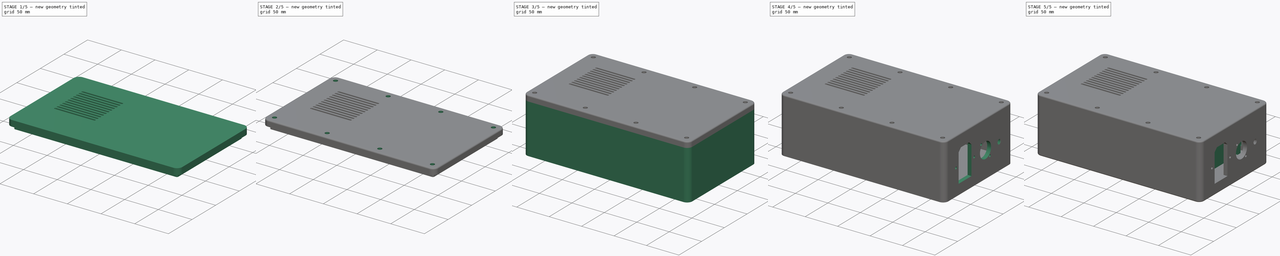
[diagram: build sequence overview — one tinted view per stage of 5, left to right]
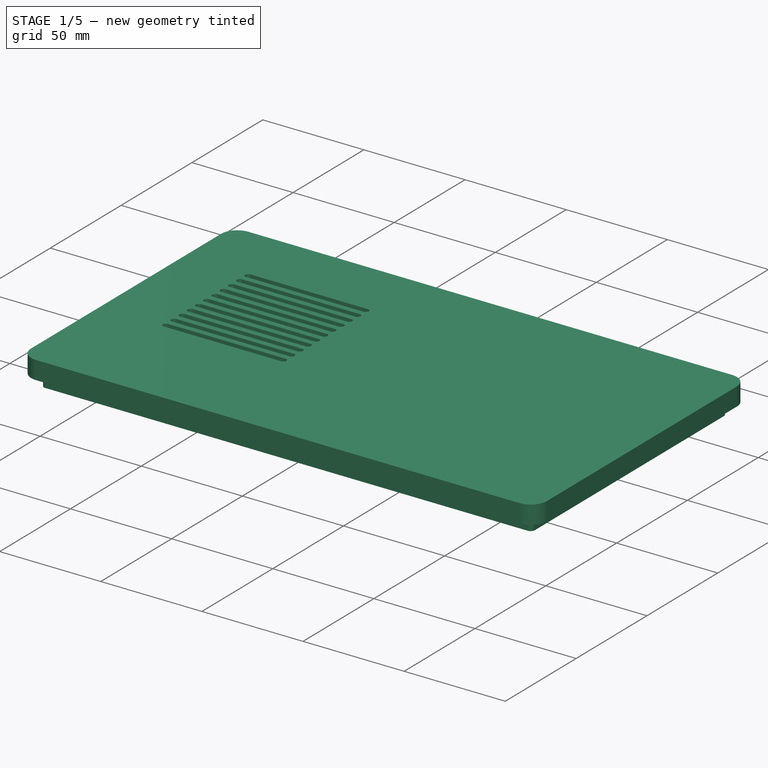
[diagram: stage 1 of 5 — iso view after this stage's code; geometry added in this stage tinted green]
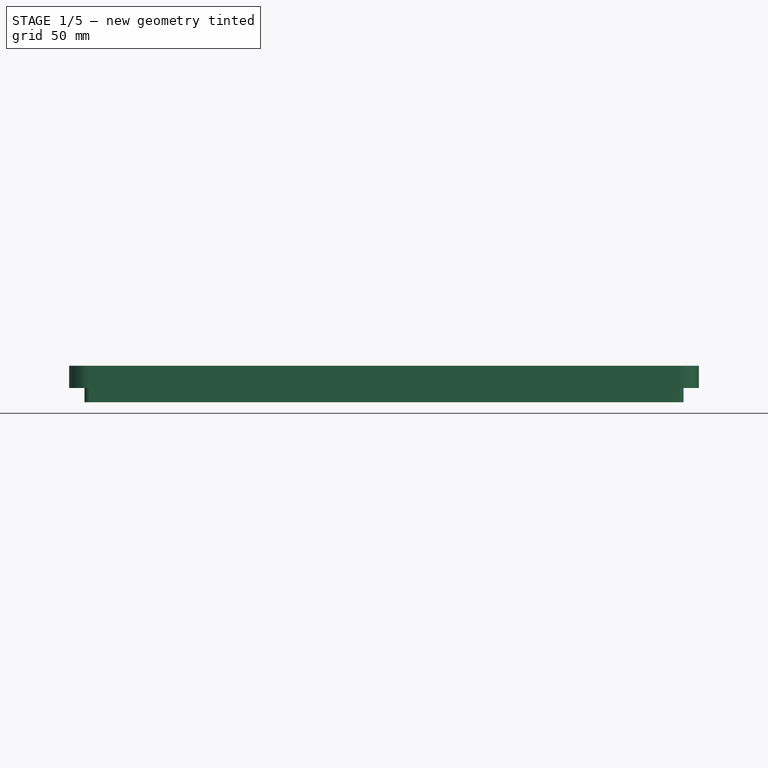
[diagram: stage 1 of 5 — front view after this stage's code; geometry added in this stage tinted green]
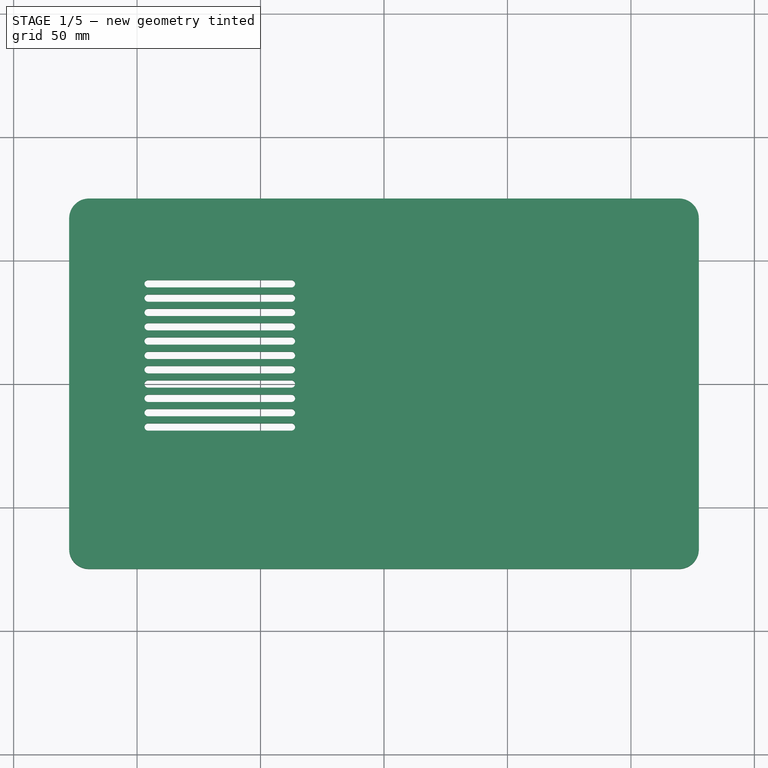
[diagram: stage 1 of 5 — top view after this stage's code; geometry added in this stage tinted green]
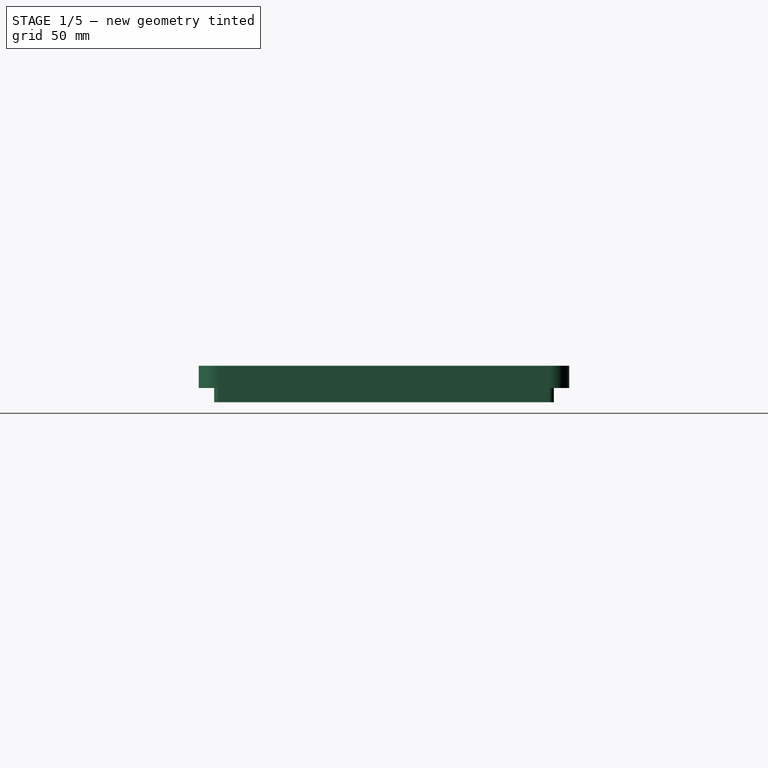
[diagram: stage 1 of 5 — right view after this stage's code; geometry added in this stage tinted green]
FCSTD DOCUMENT  (FreeCAD 0.21R33668 +26 (Git))
Label: PSU_Box_V2
License: All rights reserved
LicenseURL: http://en.wikipedia.org/wiki/All_rights_reserved
objects: Sketcher::SketchObject×18, PartDesign::Pad×8, PartDesign::Mirrored×8, PartDesign::Pocket×6, PartDesign::MultiTransform×4, PartDesign::Hole×4, PartDesign::Body×3, PartDesign::LinearPattern×2, PartDesign::Fillet×2, Spreadsheet::Sheet×1, App::Part×1
note: 75 computed .brp shape members not serialized (recipe doc carries the construction recipe); baked Part::Feature solids carry a one-line shape summary decoded from their .brp

FEATURE [Sketcher::SketchObject] Sketch009
  AttachmentOffset = pos=(0,0,76) rot=(0,0,1;0rad)
  FullyConstrained = true
  MapMode = 5
  Placement = pos=(0,0,76) rot=(0,0,1;0rad)
  Support = -> [XY_Plane003]
  expr: .AttachmentOffset.Base.z = Spreadsheet.box_height
  expr: Constraints[16] = Spreadsheet.outside_radius
  expr: Constraints[17] = Spreadsheet.box_width
  expr: Constraints[18] = Spreadsheet.box_length
  sketch-geometry (9):
    g0: LineSegment StartX=127.5 StartY=-67 StartZ=0 EndX=127.5 EndY=67 EndZ=0
    g1: LineSegment StartX=119.5 StartY=75 StartZ=0 EndX=-119.5 EndY=75 EndZ=0
    g2: LineSegment StartX=-127.5 StartY=67 StartZ=0 EndX=-127.5 EndY=-67 EndZ=0
    g3: LineSegment StartX=-119.5 StartY=-75 StartZ=0 EndX=119.5 EndY=-75 EndZ=0
    g4: GeomPoint X=0 Y=0 Z=0
    g5: ArcOfCircle CenterX=-119.5 CenterY=67 CenterZ=0 NormalX=0 NormalY=0 NormalZ=1 AngleXU=0 Radius=8 StartAngle=1.5708 EndAngle=3.14159
    g6: ArcOfCircle CenterX=119.5 CenterY=67 CenterZ=0 NormalX=0 NormalY=0 NormalZ=1 AngleXU=0 Radius=8 StartAngle=1e-16 EndAngle=1.5708
    g7: ArcOfCircle CenterX=119.5 CenterY=-67 CenterZ=0 NormalX=0 NormalY=0 NormalZ=1 AngleXU=0 Radius=8 StartAngle=4.71239 EndAngle=6.28319
    g8: ArcOfCircle CenterX=-119.5 CenterY=-67 CenterZ=0 NormalX=0 NormalY=0 NormalZ=1 AngleXU=0 Radius=8 StartAngle=3.14159 EndAngle=4.71239
  constraints (20):
    c: Horizontal(g1)
    c: Horizontal(g3)
    c: Vertical(g0)
    c: Vertical(g2)
    c: Coincident(g4,g-1)
    c: Tangent(g2,g5) = -1.5708
    c: Tangent(g1,g5) = -1.5708
    c: Tangent(g1,g6) = -1.5708
    c: Tangent(g0,g6) = -1.5708
    c: Tangent(g3,g7) = -1.5708
    c: Tangent(g0,g7) = -1.5708
    c: Tangent(g3,g8) = -1.5708
    c: Tangent(g2,g8) = -1.5708
    c: Equal(g5,g6)
    c: Equal(g6,g7)
    c: Equal(g7,g8)
    c: Radius(g5) = 8
    c: DistanceY(g3,g1) = 150
    c: DistanceX(g2,g0) = 255
    c: Symmetric(g5,g7,g4)
FEATURE [PartDesign::Pad] Pad006
  Direction = (0,0,1)
  Length = 9
  Length2 = 10
  Profile = -> Sketch009
  ReferenceAxis = -> Sketch009 [N_Axis]
  Type = 0
  expr: Length = Spreadsheet.base_thickness
FEATURE [Sketcher::SketchObject] Sketch010
  AttachmentOffset = pos=(0,0,76) rot=(0,0,1;0rad)
  FullyConstrained = true
  MapMode = 5
  Placement = pos=(0,0,76) rot=(0,0,1;0rad)
  Support = -> [XY_Plane003]
  expr: .AttachmentOffset.Base.z = Spreadsheet.box_height
  expr: Constraints[17] = Spreadsheet.box_inside_length - Spreadsheet.clearance_sides * 2
  expr: Constraints[18] = Spreadsheet.box_inside_width - Spreadsheet.clearance_sides * 2
  expr: Constraints[19] = Spreadsheet.inside_radius
  sketch-geometry (9):
    g0: LineSegment StartX=-121.3 StartY=-66.8 StartZ=0 EndX=-121.3 EndY=66.8 EndZ=0
    g1: LineSegment StartX=-119.3 StartY=68.8 StartZ=0 EndX=119.3 EndY=68.8 EndZ=0
    g2: LineSegment StartX=121.3 StartY=66.8 StartZ=0 EndX=121.3 EndY=-66.8 EndZ=0
    g3: LineSegment StartX=119.3 StartY=-68.8 StartZ=0 EndX=-119.3 EndY=-68.8 EndZ=0
    g4: GeomPoint X=0 Y=0 Z=0
    g5: ArcOfCircle CenterX=-119.3 CenterY=66.8 CenterZ=0 NormalX=0 NormalY=0 NormalZ=1 AngleXU=0 Radius=2 StartAngle=1.5708 EndAngle=3.14159
    g6: ArcOfCircle CenterX=119.3 CenterY=66.8 CenterZ=0 NormalX=0 NormalY=0 NormalZ=1 AngleXU=0 Radius=2 StartAngle=-6.8692e-12 EndAngle=1.5708
    g7: ArcOfCircle CenterX=119.3 CenterY=-66.8 CenterZ=0 NormalX=0 NormalY=0 NormalZ=1 AngleXU=0 Radius=2 StartAngle=4.71239 EndAngle=6.28319
    g8: ArcOfCircle CenterX=-119.3 CenterY=-66.8 CenterZ=0 NormalX=0 NormalY=0 NormalZ=1 AngleXU=0 Radius=2 StartAngle=3.14159 EndAngle=4.71239
  constraints (20):
    c: Horizontal(g1)
    c: Horizontal(g3)
    c: Vertical(g0)
    c: Vertical(g2)
    c: Coincident(g4,g-1)
    c: Tangent(g0,g5) = 1.5708
    c: Tangent(g1,g5) = 1.5708
    c: Tangent(g1,g6) = 1.5708
    c: Tangent(g2,g6) = 1.5708
    c: Tangent(g2,g7) = 1.5708
    c: Tangent(g3,g7) = 1.5708
    c: Tangent(g3,g8) = 1.5708
    c: Tangent(g0,g8) = 1.5708
    c: Equal(g5,g6)
    c: Equal(g6,g7)
    c: Equal(g7,g8)
    c: Symmetric(g5,g7,g4)
    c: DistanceX(g0,g2) = 242.6
    c: DistanceY(g3,g1) = 137.6
    c: Radius(g5) = 2
FEATURE [PartDesign::Pad] Pad007
  BaseFeature = -> Pad006
  Direction = (0,0,1)
  Length = 5.8
  Length2 = 10
  Profile = -> Sketch010
  ReferenceAxis = -> Sketch010 [N_Axis]
  Reversed = true
  Type = 0
  expr: Length = Spreadsheet.box_height - (Spreadsheet.base_thickness + Spreadsheet.lug_height + Spreadsheet.clearance_sides)
FEATURE [Sketcher::SketchObject] Sketch011
  AttachmentOffset = pos=(0,0,85.5) rot=(0,0,1;0rad)
  FullyConstrained = true
  MapMode = 5
  Placement = pos=(0,0,85.5) rot=(0,0,1;0rad)
  Support = -> [XY_Plane003]
  expr: .AttachmentOffset.Base.z = Spreadsheet.box_height + Spreadsheet.lid_height
  expr: Constraints[0] = Spreadsheet.hole_centre_length
  expr: Constraints[1] = Spreadsheet.hole_centre_width
  expr: Constraints[2] = Spreadsheet.clearance_hole
  sketch-geometry (1):
    g0: Circle CenterX=-117.1 CenterY=64.6 CenterZ=0 NormalX=0 NormalY=0 NormalZ=1 AngleXU=0 Radius=1.65
  constraints (3):
    c: DistanceX(g0,g-1) = 117.1
    c: DistanceY(g-1,g0) = 64.6
    c: Diameter(g0) = 3.3
FEATURE [Sketcher::SketchObject] Sketch012
  AttachmentOffset = pos=(0,0,85.5) rot=(0,0,1;0rad)
  FullyConstrained = true
  MapMode = 5
  Placement = pos=(0,0,85.5) rot=(0,0,1;0rad)
  Support = -> [XY_Plane003]
  expr: .AttachmentOffset.Base.z = Spreadsheet.box_height + Spreadsheet.lid_height
  expr: Constraints[0] = Spreadsheet.hole_centre_width
  expr: Constraints[1] = Spreadsheet.hole_centre_length / 3
  expr: Constraints[2] = Spreadsheet.clearance_hole
  sketch-geometry (1):
    g0: Circle CenterX=-39.0333 CenterY=64.6 CenterZ=0 NormalX=0 NormalY=0 NormalZ=1 AngleXU=0 Radius=1.65
  constraints (3):
    c: DistanceY(g-1,g0) = 64.6
    c: DistanceX(g0,g-1) = 39.0333
    c: Diameter(g0) = 3.3
FEATURE [Sketcher::SketchObject] Sketch013
  AttachmentOffset = pos=(0,0,76) rot=(0,0,1;0rad)
  FullyConstrained = true
  MapMode = 5
  Placement = pos=(0,0,76) rot=(0,0,1;0rad)
  Support = -> [XY_Plane003]
  expr: .AttachmentOffset.Base.z = Spreadsheet.box_height
  expr: Constraints[17] = Spreadsheet.box_length * 0.89
  expr: Constraints[18] = Spreadsheet.box_width * 0.8
  sketch-geometry (9):
    g0: LineSegment StartX=113.475 StartY=-53 StartZ=0 EndX=113.475 EndY=53 EndZ=0
    g1: LineSegment StartX=106.475 StartY=60 StartZ=0 EndX=-106.475 EndY=60 EndZ=0
    g2: LineSegment StartX=-113.475 StartY=53 StartZ=0 EndX=-113.475 EndY=-53 EndZ=0
    g3: LineSegment StartX=-106.475 StartY=-60 StartZ=0 EndX=106.475 EndY=-60 EndZ=0
    g4: GeomPoint X=0 Y=0 Z=0
    g5: ArcOfCircle CenterX=-106.475 CenterY=53 CenterZ=0 NormalX=0 NormalY=0 NormalZ=1 AngleXU=0 Radius=7 StartAngle=1.5708 EndAngle=3.14159
    g6: ArcOfCircle CenterX=106.475 CenterY=53 CenterZ=0 NormalX=0 NormalY=0 NormalZ=1 AngleXU=0 Radius=7 StartAngle=0 EndAngle=1.5708
    g7: ArcOfCircle CenterX=106.475 CenterY=-53 CenterZ=0 NormalX=0 NormalY=0 NormalZ=1 AngleXU=0 Radius=7 StartAngle=4.71239 EndAngle=6.28319
    g8: ArcOfCircle CenterX=-106.475 CenterY=-53 CenterZ=0 NormalX=0 NormalY=0 NormalZ=1 AngleXU=0 Radius=7 StartAngle=3.14159 EndAngle=4.71239
  constraints (20):
    c: Horizontal(g1)
    c: Horizontal(g3)
    c: Vertical(g0)
    c: Vertical(g2)
    c: Coincident(g4,g-1)
    c: Tangent(g2,g5) = -1.5708
    c: Tangent(g1,g5) = -1.5708
    c: Tangent(g1,g6) = -1.5708
    c: Tangent(g0,g6) = -1.5708
    c: Tangent(g0,g7) = -1.5708
    c: Tangent(g3,g7) = -1.5708
    c: Tangent(g3,g8) = -1.5708
    c: Tangent(g2,g8) = -1.5708
    c: Equal(g5,g6)
    c: Equal(g6,g7)
    c: Equal(g7,g8)
    c: Symmetric(g5,g7,g4)
    c: DistanceX(g2,g0) = 226.95
    c: DistanceY(g3,g1) = 120
    c: Radius(g5) = 7
FEATURE [PartDesign::Pocket] Pocket004
  BaseFeature = -> Pad007
  Direction = (0,0,-1)
  Length = 5
  Length2 = 5
  Profile = -> Sketch013
  ReferenceAxis = -> Sketch013 [N_Axis]
  Type = 2
FEATURE [PartDesign::Body] Body  label="Box"
  Group = -> [Sketch,Pad,Sketch001,Pocket,Sketch002,Pad001,MultiTransform,Mirrored,Mirrored001,Sketch004,Pad002,MultiTransform001,Mirrored002,Mirrored003,Sketch014,Pocket005,Sketch015,Hole,Sketch016,Pad008,Sketch017,Hole001,Sketch018,Pocket006,LinearPattern,Fillet]
  Origin = -> Origin001
  Tip = -> Fillet
FEATURE [Sketcher::SketchObject] Sketch019
  AttachmentOffset = pos=(0,0,85.5) rot=(0,0,1;0rad)
  FullyConstrained = true
  MapMode = 5
  Placement = pos=(0,0,85.5) rot=(0,0,1;0rad)
  Support = -> [XY_Plane003]
  expr: .AttachmentOffset.Base.z = Spreadsheet.box_height + Spreadsheet.lid_height
  sketch-geometry (9):
    g0: LineSegment StartX=-95.5 StartY=-17.5 StartZ=0 EndX=-95.5 EndY=40.5 EndZ=0
    g1: LineSegment StartX=-95.5 StartY=40.5 StartZ=0 EndX=-37.5 EndY=40.5 EndZ=0
    g2: LineSegment StartX=-37.5 StartY=40.5 StartZ=0 EndX=-37.5 EndY=-17.5 EndZ=0
    g3: LineSegment StartX=-37.5 StartY=-17.5 StartZ=0 EndX=-95.5 EndY=-17.5 EndZ=0
    g4: GeomPoint X=-66.5 Y=11.5 Z=0
    g5: ArcOfCircle CenterX=-95.5 CenterY=40.5 CenterZ=0 NormalX=0 NormalY=0 NormalZ=1 AngleXU=0 Radius=1.5 StartAngle=1.5708 EndAngle=4.71239
    g6: ArcOfCircle CenterX=-37.5 CenterY=40.5 CenterZ=0 NormalX=0 NormalY=0 NormalZ=1 AngleXU=0 Radius=1.5 StartAngle=4.71239 EndAngle=7.85398
    g7: LineSegment StartX=-95.5 StartY=39 StartZ=0 EndX=-37.5 EndY=39 EndZ=0
    g8: LineSegment StartX=-37.5 StartY=42 StartZ=0 EndX=-95.5 EndY=42 EndZ=0
  constraints (20):
    c: Coincident(g0,g1)
    c: Coincident(g1,g2)
    c: Coincident(g2,g3)
    c: Coincident(g3,g0)
    c: Horizontal(g1)
    c: Vertical(g0)
    c: Symmetric(g1,g0,g4)
    c: Symmetric(g0,g2,g4)
    c: DistanceY(g4) = 11.5
    c: DistanceX(g4) = -66.5
    c: Distance(g1) = 58
    c: Distance(g0) = 58
    c: Tangent(g5,g7) = -1.5708
    c: Tangent(g7,g6) = -1.5708
    c: Tangent(g6,g8) = -1.5708
    c: Tangent(g8,g5) = -1.5708
    c: Equal(g5,g6)
    c: Coincident(g5,g0)
    c: Coincident(g6,g1)
    c: Diameter(g6) = 3
FEATURE [PartDesign::Pocket] Pocket007
  BaseFeature = -> Pocket004
  Direction = (0,0,-1)
  Length = 5
  Length2 = 5
  Profile = -> Sketch019
  ReferenceAxis = -> Sketch019 [N_Axis]
  Type = 1
FEATURE [PartDesign::LinearPattern] LinearPattern001
  BaseFeature = -> Pocket007
  Direction = -> Y_Axis003
  Length = 58
  Occurrences = 11
  Originals = -> [Pocket007]
  Reversed = true
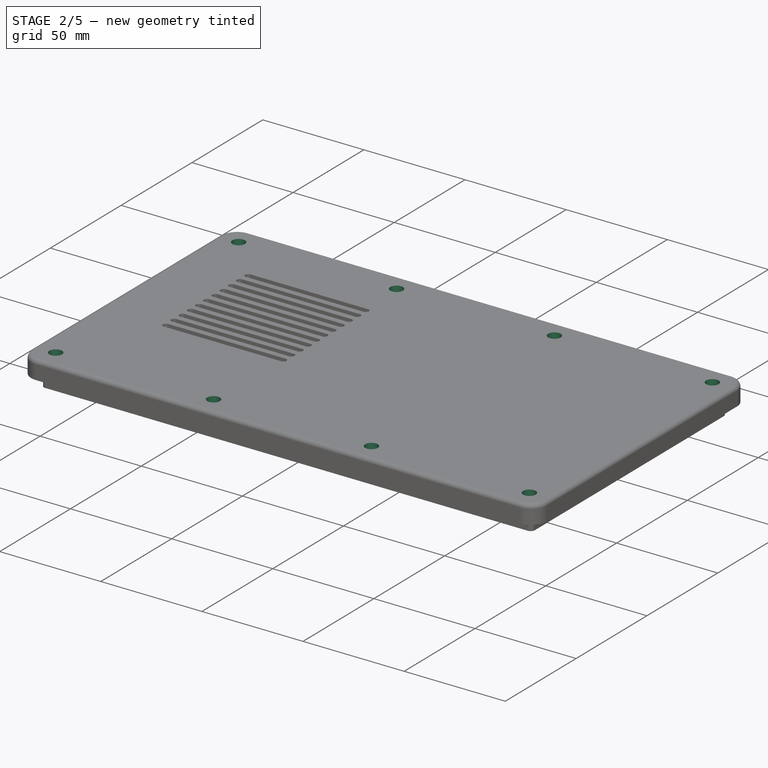
[diagram: stage 2 of 5 — iso view after this stage's code; geometry added in this stage tinted green]
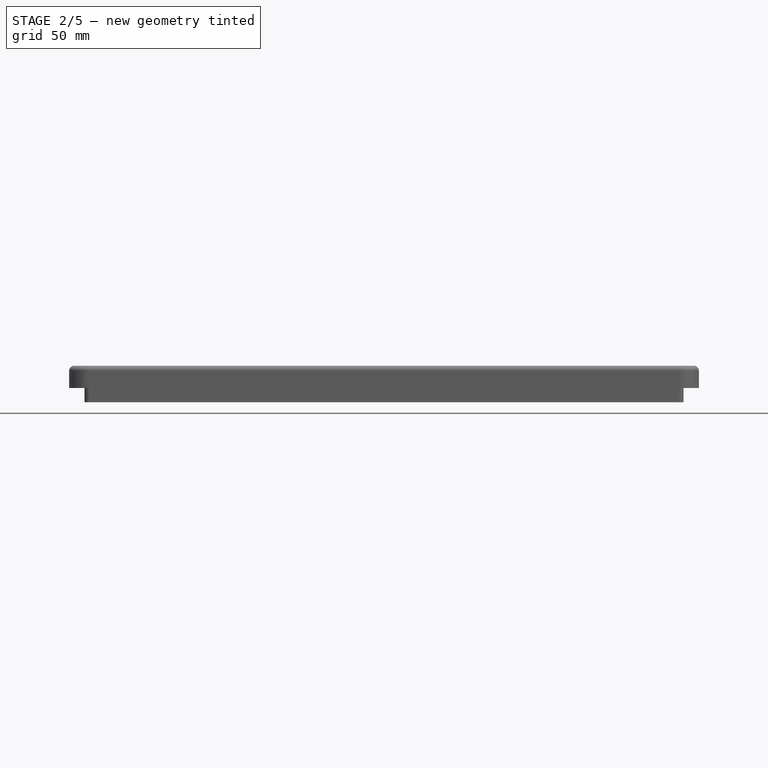
[diagram: stage 2 of 5 — front view after this stage's code; geometry added in this stage tinted green]
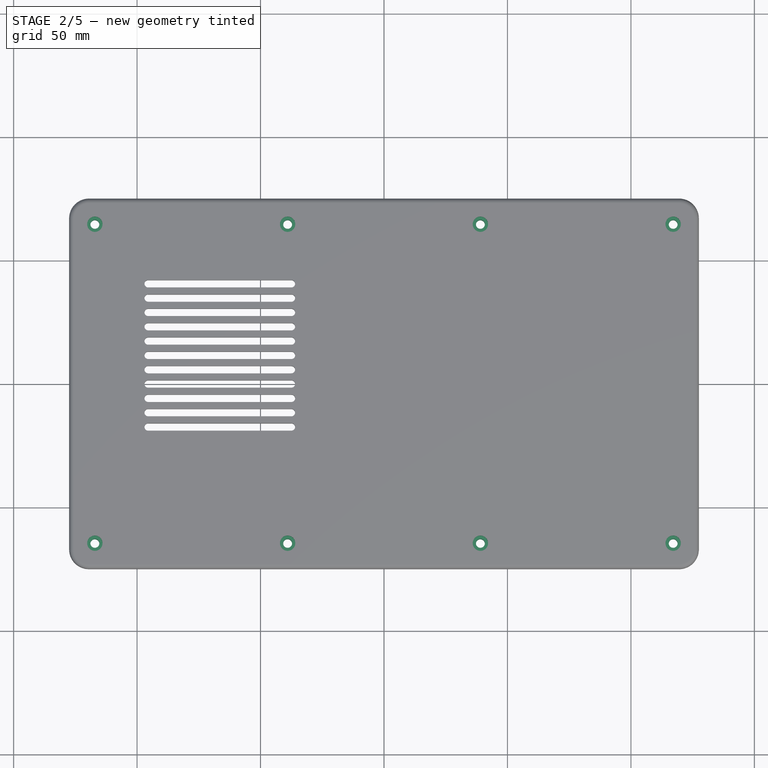
[diagram: stage 2 of 5 — top view after this stage's code; geometry added in this stage tinted green]
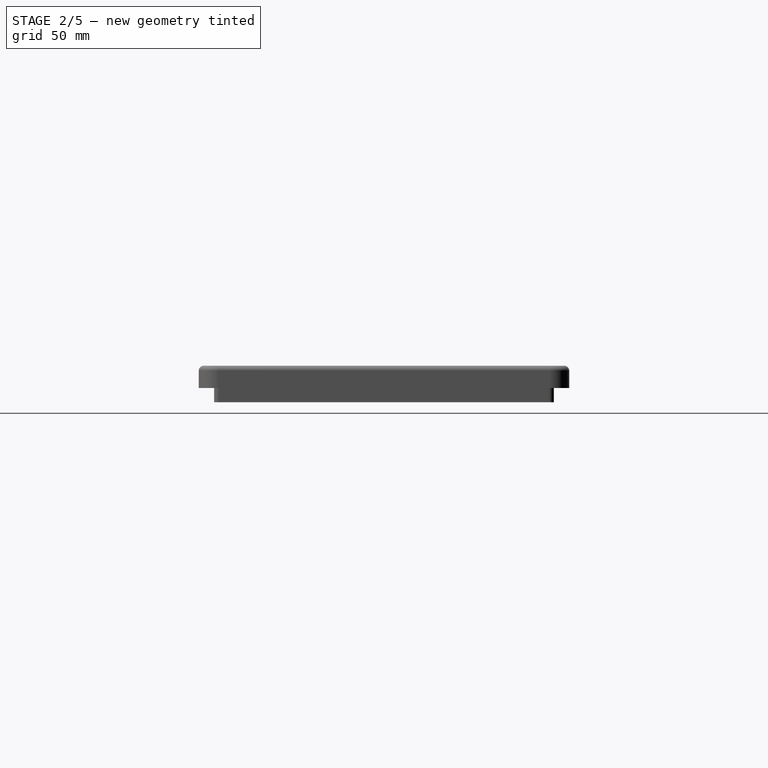
[diagram: stage 2 of 5 — right view after this stage's code; geometry added in this stage tinted green]
FEATURE [PartDesign::Hole] Hole002
  BaseFeature = -> LinearPattern001
  CustomThreadClearance = 0
  Depth = 598.408
  DepthType = 1
  Diameter = 3.6
  DrillForDepth = false
  DrillPoint = 1
  DrillPointAngle = 118
  HoleCutCountersinkAngle = 90
  HoleCutCustomValues = false
  HoleCutDepth = 4.5
  HoleCutDiameter = 6.2
  HoleCutType = 1
  ModelThread = false
  Profile = -> Sketch011
  Tapered = false
  TaperedAngle = 90
  ThreadClass = 0
  ThreadDepth = 598.408
  ThreadDepthType = 0
  ThreadDirection = 0
  ThreadFit = 2
  ThreadSize = 9
  ThreadType = 1
  Threaded = false
  UseCustomThreadClearance = false
FEATURE [PartDesign::Hole] Hole003
  BaseFeature = -> Hole002
  CustomThreadClearance = 0
  Depth = 598.408
  DepthType = 1
  Diameter = 3.6
  DrillForDepth = false
  DrillPoint = 1
  DrillPointAngle = 118
  HoleCutCountersinkAngle = 90
  HoleCutCustomValues = false
  HoleCutDepth = 4.5
  HoleCutDiameter = 6.2
  HoleCutType = 1
  ModelThread = false
  Profile = -> Sketch012
  Tapered = false
  TaperedAngle = 90
  ThreadClass = 0
  ThreadDepth = 598.408
  ThreadDepthType = 0
  ThreadDirection = 0
  ThreadFit = 2
  ThreadSize = 9
  ThreadType = 1
  Threaded = false
  UseCustomThreadClearance = false
FEATURE [PartDesign::Mirrored] Mirrored004
  MirrorPlane = -> Sketch011 [V_Axis]
FEATURE [PartDesign::Mirrored] Mirrored005
  MirrorPlane = -> Sketch011 [H_Axis]
FEATURE [PartDesign::MultiTransform] MultiTransform002
  BaseFeature = -> Hole003
  Originals = -> [Hole002]
  Transformations = -> [Mirrored004,Mirrored005]
FEATURE [PartDesign::Mirrored] Mirrored006
  MirrorPlane = -> Sketch012 [V_Axis]
FEATURE [PartDesign::Mirrored] Mirrored007
  MirrorPlane = -> Sketch012 [H_Axis]
FEATURE [PartDesign::MultiTransform] MultiTransform003
  BaseFeature = -> MultiTransform002
  Originals = -> [Hole003]
  Transformations = -> [Mirrored006,Mirrored007]
FEATURE [PartDesign::Fillet] Fillet001
  Base = -> MultiTransform003 [Edge25,Edge27,Edge28,Edge26,Edge24,Edge7,Edge4,Edge10]
  BaseFeature = -> MultiTransform003
  Radius = 2
  SupportTransform = false
  UseAllEdges = false
FEATURE [PartDesign::Body] Body002  label="Lid"
  Group = -> [Sketch009,Pad006,Sketch010,Pad007,Sketch011,Sketch012,Sketch013,Pocket004,Sketch019,Pocket007,LinearPattern001,Hole002,Hole003,MultiTransform002,Mirrored004,Mirrored005,MultiTransform003,Mirrored006,Mirrored007,Fillet001]
  Origin = -> Origin003
  Tip = -> Fillet001
FEATURE [App::Part] Part
  Group = -> [Body,Body001,Body002]
  Origin = -> Origin
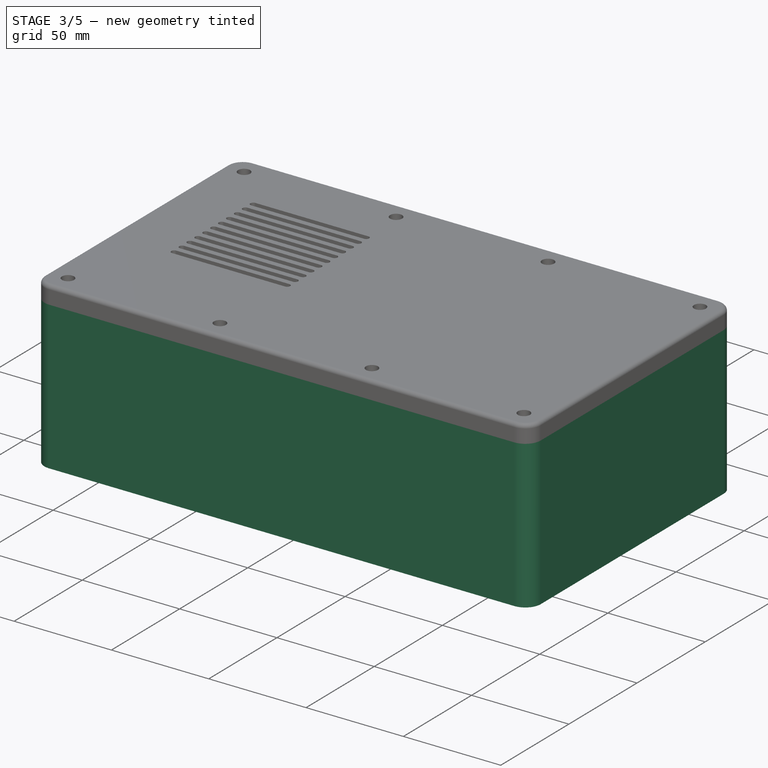
[diagram: stage 3 of 5 — iso view after this stage's code; geometry added in this stage tinted green]
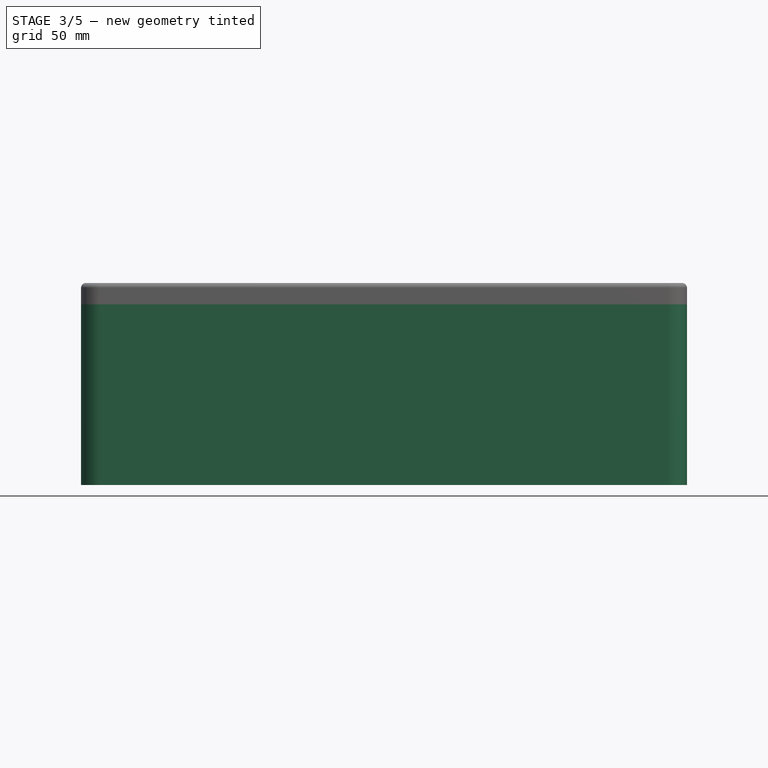
[diagram: stage 3 of 5 — front view after this stage's code; geometry added in this stage tinted green]
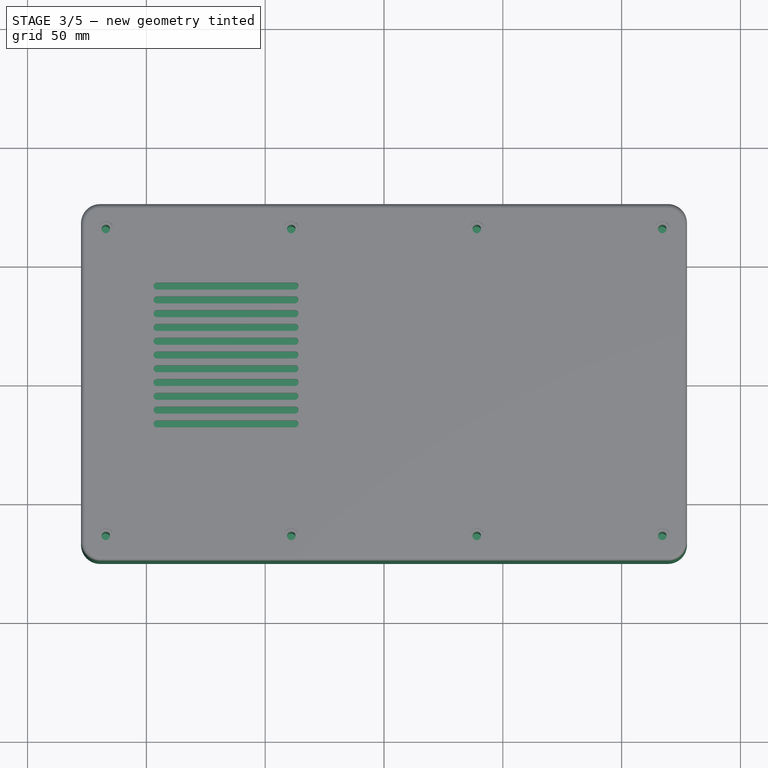
[diagram: stage 3 of 5 — top view after this stage's code; geometry added in this stage tinted green]
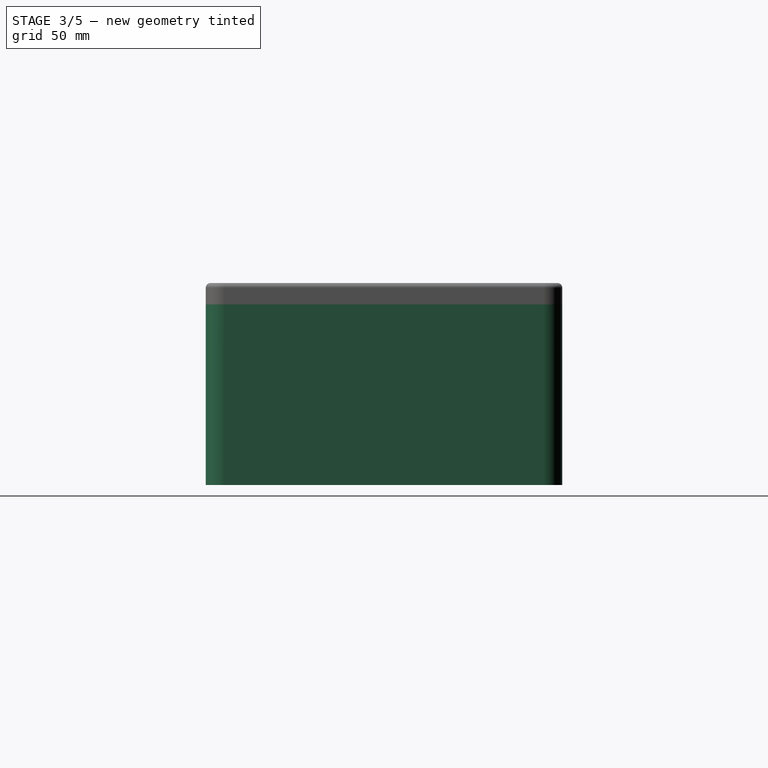
[diagram: stage 3 of 5 — right view after this stage's code; geometry added in this stage tinted green]
FEATURE [Sketcher::SketchObject] Sketch
  FullyConstrained = true
  MapMode = 5
  Support = -> [XY_Plane001]
  expr: Constraints[16] = Spreadsheet.box_length
  expr: Constraints[17] = Spreadsheet.box_width
  expr: Constraints[19] = Spreadsheet.outside_radius
  sketch-geometry (9):
    g0: LineSegment StartX=127.5 StartY=-67 StartZ=0 EndX=127.5 EndY=67 EndZ=0
    g1: LineSegment StartX=119.5 StartY=75 StartZ=0 EndX=-119.5 EndY=75 EndZ=0
    g2: LineSegment StartX=-127.5 StartY=67 StartZ=0 EndX=-127.5 EndY=-67 EndZ=0
    g3: LineSegment StartX=-119.5 StartY=-75 StartZ=0 EndX=119.5 EndY=-75 EndZ=0
    g4: GeomPoint X=0 Y=0 Z=0
    g5: ArcOfCircle CenterX=-119.5 CenterY=67 CenterZ=0 NormalX=0 NormalY=0 NormalZ=1 AngleXU=0 Radius=8 StartAngle=1.5708 EndAngle=3.14159
    g6: ArcOfCircle CenterX=119.5 CenterY=67 CenterZ=0 NormalX=0 NormalY=0 NormalZ=1 AngleXU=0 Radius=8 StartAngle=5e-16 EndAngle=1.5708
    g7: ArcOfCircle CenterX=119.5 CenterY=-67 CenterZ=0 NormalX=0 NormalY=0 NormalZ=1 AngleXU=0 Radius=8 StartAngle=4.71239 EndAngle=6.28319
    g8: ArcOfCircle CenterX=-119.5 CenterY=-67 CenterZ=0 NormalX=0 NormalY=0 NormalZ=1 AngleXU=0 Radius=8 StartAngle=3.14159 EndAngle=4.71239
  constraints (20):
    c: Horizontal(g1)
    c: Horizontal(g3)
    c: Vertical(g0)
    c: Vertical(g2)
    c: Coincident(g4,g-1)
    c: Tangent(g2,g5) = -1.5708
    c: Tangent(g1,g5) = -1.5708
    c: Tangent(g1,g6) = -1.5708
    c: Tangent(g0,g6) = -1.5708
    c: Tangent(g0,g7) = -1.5708
    c: Tangent(g3,g7) = -1.5708
    c: Tangent(g3,g8) = -1.5708
    c: Tangent(g2,g8) = -1.5708
    c: Equal(g5,g6)
    c: Equal(g6,g7)
    c: Equal(g7,g8)
    c: DistanceX(g2,g0) = 255
    c: DistanceY(g3,g1) = 150
    c: Symmetric(g5,g7,g4)
    c: Radius(g5) = 8
FEATURE [PartDesign::Pad] Pad
  Direction = (0,0,1)
  Length = 76
  Length2 = 10
  Profile = -> Sketch
  ReferenceAxis = -> Sketch [N_Axis]
  Type = 0
  expr: Length = Spreadsheet.box_height
FEATURE [Spreadsheet::Sheet] Spreadsheet
  cells = A2='box_length; B2(box_length)=255; A3='box_width; B3(box_width)=150; A4='box_height; B4(box_height)=76; A5='outside_radius; B5(outside_radius)==B7 + 2; C5='calc; A6='inside_radius; B6(inside_radius)==B5 - B7; C6='calc; A7='wall_thickness; B7(wall_thickness)=6; A8='hole_diameter; B8(hole_diameter)=4.4; A9='lug_height; B9(lug_height)==B4 - B15 - B7; C9='calc; A10='lug_radius; B10(lug_radius)==B8 * 2.5; C10='calc; A11='hole_centre_length; B11(hole_centre_length)==B13 / 2 - B8; C11='calc; A12='hole_centre_width; B12(hole_centre_width)==B14 / 2 - B8; C12='calc; A13='box_inside_length; B13(box_inside_length)==B2 - B7 * 2; C13='calc; A14='box_inside_width; B14(box_inside_width)==B3 - B7 * 2; C14='calc; A15='base_thickness; B15(base_thickness)==B7 * 1.5; C15='calc; A17='clearance_sides; B17(clearance_sides)=0.2; A18='clearance_hole; B18(clearance_hole)==B8 * 0.75; C18='calc; A19='lid_height; B19(lid_height)==B4 / 8; C19='calc
FEATURE [Sketcher::SketchObject] Sketch001
  AttachmentOffset = pos=(0,0,9) rot=(0,0,1;0rad)
  FullyConstrained = true
  MapMode = 5
  Placement = pos=(0,0,9) rot=(0,0,1;0rad)
  Support = -> [XY_Plane001]
  expr: .AttachmentOffset.Base.z = Spreadsheet.base_thickness
  expr: Constraints[17] = Spreadsheet.inside_radius
  expr: Constraints[18] = Spreadsheet.box_inside_width
  expr: Constraints[19] = Spreadsheet.box_inside_length
  sketch-geometry (9):
    g0: LineSegment StartX=121.5 StartY=-67 StartZ=0 EndX=121.5 EndY=67 EndZ=0
    g1: LineSegment StartX=119.5 StartY=69 StartZ=0 EndX=-119.5 EndY=69 EndZ=0
    g2: LineSegment StartX=-121.5 StartY=67 StartZ=0 EndX=-121.5 EndY=-67 EndZ=0
    g3: LineSegment StartX=-119.5 StartY=-69 StartZ=0 EndX=119.5 EndY=-69 EndZ=0
    g4: GeomPoint X=0 Y=0 Z=0
    g5: ArcOfCircle CenterX=-119.5 CenterY=67 CenterZ=0 NormalX=0 NormalY=0 NormalZ=1 AngleXU=0 Radius=2 StartAngle=1.5708 EndAngle=3.14159
    g6: ArcOfCircle CenterX=119.5 CenterY=67 CenterZ=0 NormalX=0 NormalY=0 NormalZ=1 AngleXU=0 Radius=2 StartAngle=-6.8683e-12 EndAngle=1.5708
    g7: ArcOfCircle CenterX=119.5 CenterY=-67 CenterZ=0 NormalX=0 NormalY=0 NormalZ=1 AngleXU=0 Radius=2 StartAngle=4.71239 EndAngle=6.28319
    g8: ArcOfCircle CenterX=-119.5 CenterY=-67 CenterZ=0 NormalX=0 NormalY=0 NormalZ=1 AngleXU=0 Radius=2 StartAngle=3.14159 EndAngle=4.71239
  constraints (20):
    c: Horizontal(g1)
    c: Horizontal(g3)
    c: Vertical(g0)
    c: Vertical(g2)
    c: Coincident(g4,g-1)
    c: Tangent(g2,g5) = -1.5708
    c: Tangent(g1,g5) = -1.5708
    c: Tangent(g1,g6) = -1.5708
    c: Tangent(g0,g6) = -1.5708
    c: Tangent(g0,g7) = -1.5708
    c: Tangent(g3,g7) = -1.5708
    c: Tangent(g3,g8) = -1.5708
    c: Tangent(g2,g8) = -1.5708
    c: Symmetric(g5,g7,g4)
    c: Equal(g5,g6)
    c: Equal(g6,g7)
    c: Equal(g7,g8)
    c: Radius(g5) = 2
    c: DistanceY(g3,g1) = 138
    c: DistanceX(g2,g0) = 243
FEATURE [PartDesign::Pocket] Pocket
  BaseFeature = -> Pad
  Direction = (0,0,-1)
  Length = 5
  Length2 = 5
  Profile = -> Sketch001
  ReferenceAxis = -> Sketch001 [N_Axis]
  Reversed = true
  Type = 1
FEATURE [Sketcher::SketchObject] Sketch002
  AttachmentOffset = pos=(0,0,9) rot=(0,0,1;0rad)
  FullyConstrained = true
  MapMode = 5
  Placement = pos=(0,0,9) rot=(0,0,1;0rad)
  Support = -> [XY_Plane001]
  expr: .AttachmentOffset.Base.z = Spreadsheet.base_thickness
  expr: Constraints[10] = Spreadsheet.hole_centre_length
  expr: Constraints[11] = Spreadsheet.hole_centre_width
  expr: Constraints[6] = Spreadsheet.hole_diameter
  expr: Constraints[7] = Spreadsheet.lug_radius
  expr: Constraints[8] = Spreadsheet.hole_diameter
  expr: Constraints[9] = Spreadsheet.hole_diameter
  sketch-geometry (4):
    g0: LineSegment StartX=-121.5 StartY=69 StartZ=0 EndX=-110.5 EndY=69 EndZ=0
    g1: LineSegment StartX=-121.5 StartY=69 StartZ=0 EndX=-121.5 EndY=58 EndZ=0
    g2: ArcOfCircle CenterX=-121.5 CenterY=69 CenterZ=0 NormalX=0 NormalY=0 NormalZ=1 AngleXU=0 Radius=11 StartAngle=4.71239 EndAngle=6.28319
    g3: Circle CenterX=-117.1 CenterY=64.6 CenterZ=0 NormalX=0 NormalY=0 NormalZ=1 AngleXU=0 Radius=2.2
  constraints (12):
    c: Horizontal(g0)
    c: Coincident(g1,g0)
    c: Vertical(g1)
    c: Coincident(g2,g0)
    c: Coincident(g2,g0)
    c: Coincident(g2,g1)
    c: Diameter(g3) = 4.4
    c: Radius(g2) = 11
    c: DistanceY(g3,g0) = 4.4
    c: DistanceX(g0,g3) = 4.4
    c: DistanceX(g3,g-1) = 117.1
    c: DistanceY(g-1,g3) = 64.6
FEATURE [PartDesign::Pad] Pad001
  BaseFeature = -> Pocket
  Direction = (0,0,1)
  Length = 61
  Length2 = 10
  Profile = -> Sketch002
  ReferenceAxis = -> Sketch002 [N_Axis]
  Type = 0
  expr: Length = Spreadsheet.lug_height
FEATURE [PartDesign::Mirrored] Mirrored
  MirrorPlane = -> Sketch002 [V_Axis]
FEATURE [PartDesign::Mirrored] Mirrored001
  MirrorPlane = -> Sketch002 [H_Axis]
FEATURE [PartDesign::MultiTransform] MultiTransform
  BaseFeature = -> Pad001
  Originals = -> [Pad001]
  Transformations = -> [Mirrored,Mirrored001]
FEATURE [Sketcher::SketchObject] Sketch004  label="Sketch003"
  AttachmentOffset = pos=(0,0,9) rot=(0,0,1;0rad)
  FullyConstrained = true
  MapMode = 5
  Placement = pos=(0,0,9) rot=(0,0,1;0rad)
  Support = -> [XY_Plane001]
  expr: .AttachmentOffset.Base.z = Spreadsheet.base_thickness
  expr: Constraints[4] = Spreadsheet.lug_radius
  expr: Constraints[5] = Spreadsheet.hole_diameter
  expr: Constraints[6] = Spreadsheet.hole_diameter
  expr: Constraints[7] = Spreadsheet.hole_centre_width
  expr: Constraints[9] = Spreadsheet.hole_centre_length / 3
  sketch-geometry (3):
    g0: LineSegment StartX=-50.0333 StartY=69 StartZ=0 EndX=-28.0333 EndY=69 EndZ=0
    g1: ArcOfCircle CenterX=-39.0333 CenterY=69 CenterZ=0 NormalX=0 NormalY=0 NormalZ=1 AngleXU=0 Radius=11 StartAngle=3.14159 EndAngle=6.28319
    g2: Circle CenterX=-39.0333 CenterY=64.6 CenterZ=0 NormalX=0 NormalY=0 NormalZ=1 AngleXU=0 Radius=2.2
  constraints (10):
    c: Horizontal(g0)
    c: PointOnObject(g1,g0)
    c: Coincident(g1,g0)
    c: Coincident(g0,g1)
    c: Radius(g1) = 11
    c: Diameter(g2) = 4.4
    c: DistanceY(g2,g1) = 4.4
    c: DistanceY(g-1,g2) = 64.6
    c: Vertical(g2,g1)
    c: DistanceX(g2,g-1) = 39.0333
FEATURE [PartDesign::Pad] Pad002
  BaseFeature = -> MultiTransform
  Direction = (0,0,1)
  Length = 61
  Length2 = 10
  Profile = -> Sketch004
  ReferenceAxis = -> Sketch004 [N_Axis]
  Type = 0
  expr: Length = Spreadsheet.lug_height
FEATURE [PartDesign::Body] Body001  label="SMPS"
  Group = -> [Sketch005,Pad003,Sketch007,Pad005,Sketch008,Pocket001]
  Origin = -> Origin002
  Placement = pos=(-11.25,3e-15,-2) rot=(0,0,1;3.14159rad)
  Tip = -> Pocket001
FEATURE [PartDesign::Mirrored] Mirrored002
  MirrorPlane = -> Sketch004 [V_Axis]
FEATURE [PartDesign::Mirrored] Mirrored003
  MirrorPlane = -> Sketch004 [H_Axis]
FEATURE [PartDesign::MultiTransform] MultiTransform001
  BaseFeature = -> Pad002
  Originals = -> [Pad002]
  Transformations = -> [Mirrored002,Mirrored003]
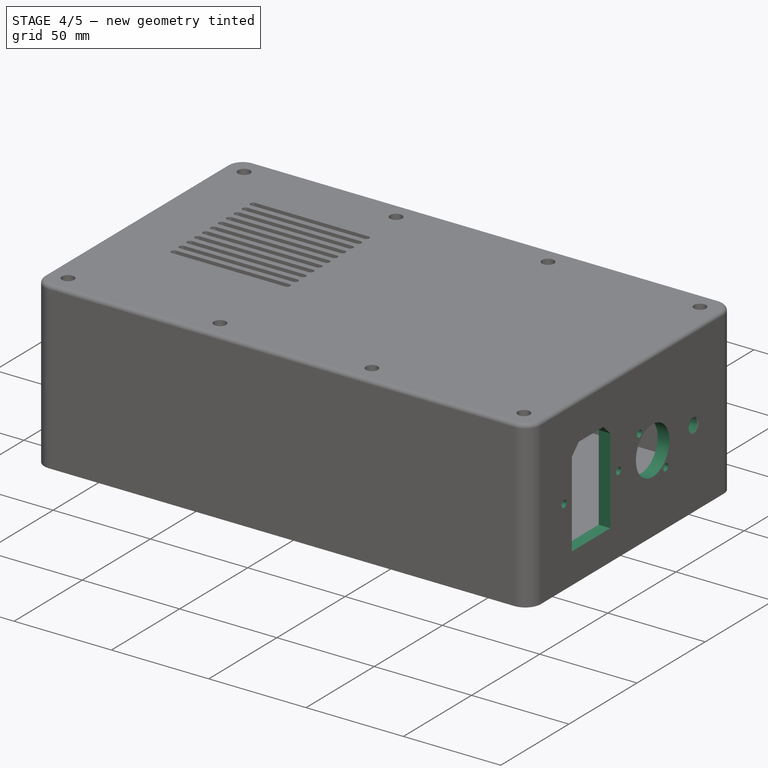
[diagram: stage 4 of 5 — iso view after this stage's code; geometry added in this stage tinted green]
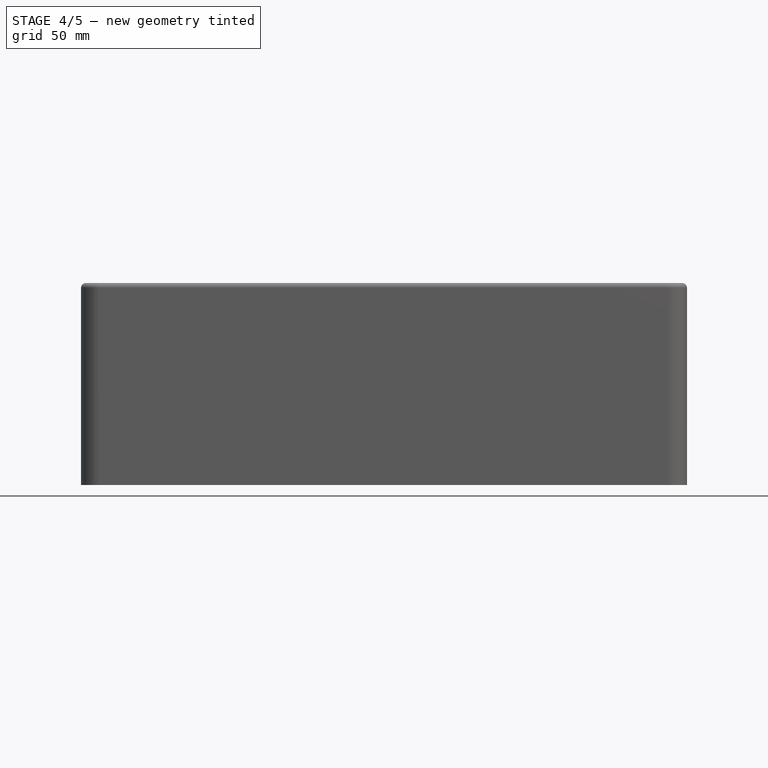
[diagram: stage 4 of 5 — front view after this stage's code; geometry added in this stage tinted green]
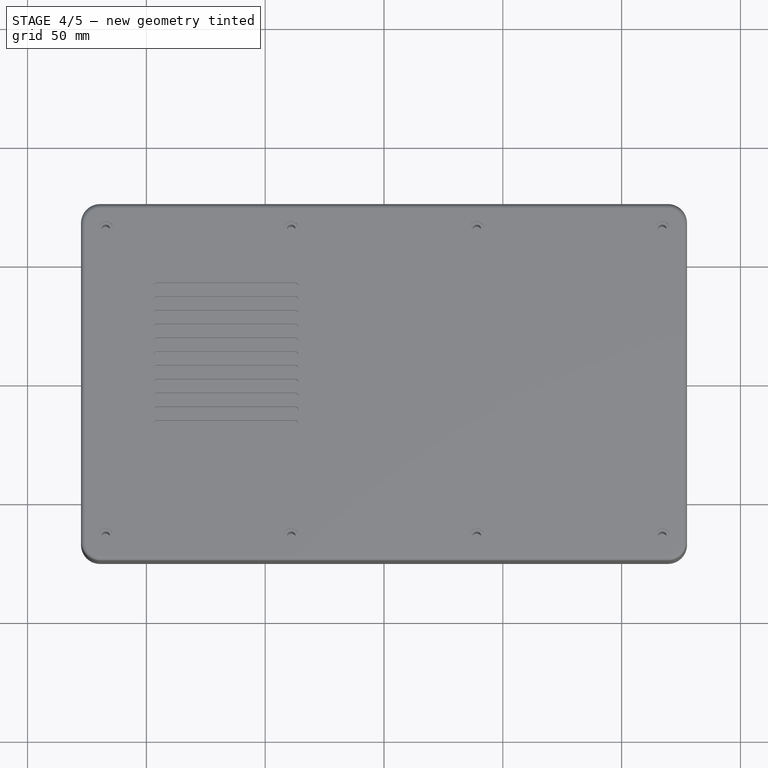
[diagram: stage 4 of 5 — top view after this stage's code; geometry added in this stage tinted green]
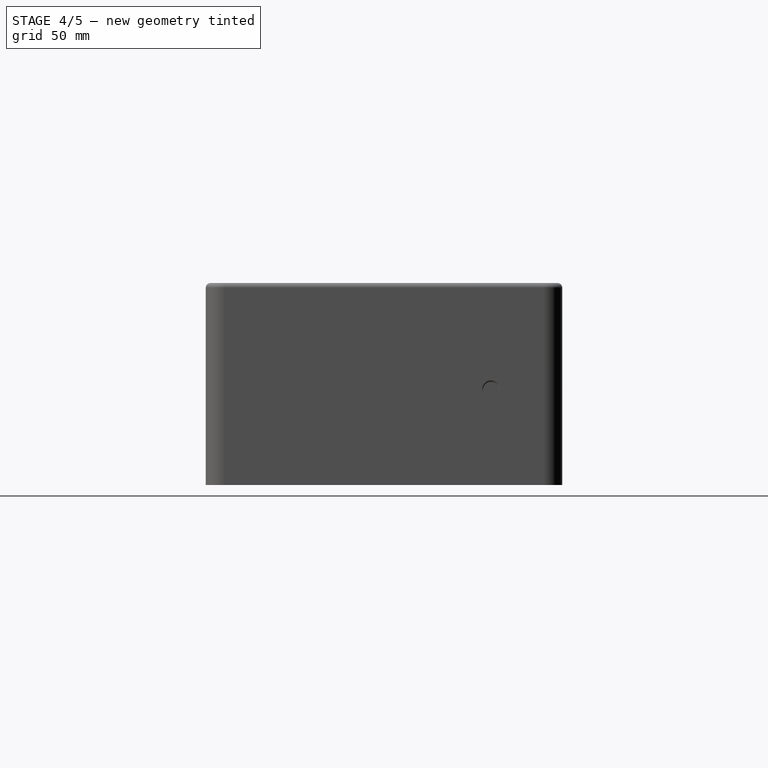
[diagram: stage 4 of 5 — right view after this stage's code; geometry added in this stage tinted green]
FEATURE [Sketcher::SketchObject] Sketch014
  AttachmentOffset = pos=(0,0,127.5) rot=(0,0,1;0rad)
  FullyConstrained = false
  MapMode = 5
  Placement = pos=(127.5,-2.83e-14,2.83e-14) rot=(0.57735,0.57735,0.57735;2.0944rad)
  Support = -> [YZ_Plane001]
  expr: .AttachmentOffset.Base.z = Spreadsheet.box_length / 2
  sketch-geometry (14):
    g0: Circle CenterX=15 CenterY=40 CenterZ=0 NormalX=0 NormalY=0 NormalZ=1 AngleXU=0 Radius=12.25
    g1: Circle CenterX=-50 CenterY=40 CenterZ=0 NormalX=0 NormalY=0 NormalZ=1 AngleXU=0 Radius=1.8
    g2: Circle CenterX=-10 CenterY=40 CenterZ=0 NormalX=0 NormalY=0 NormalZ=1 AngleXU=0 Radius=1.8
    g3: LineSegment StartX=-16 StartY=15.75 StartZ=0 EndX=-16 EndY=59.75 EndZ=0
    g4: LineSegment StartX=-21.1 StartY=64.75 StartZ=0 EndX=-39.1 EndY=64.75 EndZ=0
    g5: LineSegment StartX=-44.2 StartY=59.75 StartZ=0 EndX=-44.2 EndY=15.75 EndZ=0
    g6: LineSegment StartX=-44.2 StartY=15.75 StartZ=0 EndX=-16 EndY=15.75 EndZ=0
    g7: GeomPoint X=-30 Y=40 Z=0
    g8: Circle CenterX=5.35819 CenterY=51.4907 CenterZ=0 NormalX=0 NormalY=0 NormalZ=1 AngleXU=0 Radius=1.8
    g9: Circle CenterX=24.6418 CenterY=28.5093 CenterZ=0 NormalX=0 NormalY=0 NormalZ=1 AngleXU=0 Radius=1.8
    g10: LineSegment StartX=15 StartY=40 StartZ=0 EndX=15 EndY=23.2077 EndZ=0
    g11: LineSegment StartX=15 StartY=40 StartZ=0 EndX=24.6418 EndY=28.5093 EndZ=0
    g12: LineSegment StartX=-44.2 StartY=59.75 StartZ=0 EndX=-39.1 EndY=64.75 EndZ=0
    g13: LineSegment StartX=-21.1 StartY=64.75 StartZ=0 EndX=-16 EndY=59.75 EndZ=0
  constraints (37):
    c: Horizontal(g1,g2)
    c: Equal(g1,g2)
    c: DistanceX(g1,g2) = 40
    c: DistanceY(g1) = 40
    c: Coincident(g5,g6)
    c: Coincident(g6,g3)
    c: Horizontal(g4)
    c: Horizontal(g6)
    c: Vertical(g3)
    c: Vertical(g5)
    c: Symmetric(g1,g2,g7)
    c: Diameter(g1) = 3.6
    c: DistanceX(g7) = -30
    c: Diameter(g0) = 24.5
    c: Distance(g8,g9) = 30
    c: Equal(g8,g9)
    c: Diameter(g8) = 3.6
    c: Symmetric(g8,g9,g0)
    c: DistanceY(g0) = 40
    c: DistanceX(g0) = 15
    c: Coincident(g10,g0)
    c: Vertical(g10)
    c: Coincident(g11,g0)
    c: Coincident(g11,g9)
    c: Angle(g10,g11) = 0.698132
    c: Coincident(g4,g13)
    c: Coincident(g3,g13)
    c: Coincident(g4,g12)
    c: Coincident(g5,g12)
    c: DistanceY(g3) = 15.75
    c: DistanceX(g3) = -16
    c: DistanceX(g5,g3) = 28.2
    c: DistanceY(g3,g4) = 49
    c: DistanceX(g4,g4) = 18
    c: Equal(g5,g3)
    c: DistanceY(g3,g3) = 44
    c: Equal(g12,g13)
FEATURE [PartDesign::Pocket] Pocket005
  BaseFeature = -> MultiTransform001
  Direction = (-1,2e-16,-3e-16)
  Length = 5
  Length2 = 5
  Offset = 4
  Profile = -> Sketch014
  ReferenceAxis = -> Sketch014 [N_Axis]
  Type = 2
FEATURE [Sketcher::SketchObject] Sketch015
  AttachmentOffset = pos=(0,0,127.5) rot=(0,0,1;0rad)
  FullyConstrained = true
  MapMode = 5
  Placement = pos=(127.5,-2.83e-14,2.83e-14) rot=(0.57735,0.57735,0.57735;2.0944rad)
  Support = -> [YZ_Plane001]
  expr: .AttachmentOffset.Base.z = Spreadsheet.box_length / 2
  sketch-geometry (1):
    g0: Circle CenterX=45 CenterY=40 CenterZ=0 NormalX=0 NormalY=0 NormalZ=1 AngleXU=0 Radius=4
  constraints (3):
    c: Diameter(g0) = 8
    c: DistanceY(g0) = 40
    c: DistanceX(g0) = 45
FEATURE [PartDesign::Hole] Hole
  BaseFeature = -> Pocket005
  CustomThreadClearance = 0
  Depth = 6
  DepthType = 0
  Diameter = 6.828
  DrillForDepth = false
  DrillPoint = 1
  DrillPointAngle = 118
  HoleCutCountersinkAngle = 90
  HoleCutCustomValues = false
  HoleCutDepth = 0
  HoleCutDiameter = 0
  HoleCutType = 0
  ModelThread = true
  Profile = -> Sketch015
  Tapered = false
  TaperedAngle = 90
  ThreadClass = 0
  ThreadDepth = 6
  ThreadDepthType = 1
  ThreadDirection = 0
  ThreadFit = 0
  ThreadSize = 16
  ThreadType = 1
  Threaded = true
  UseCustomThreadClearance = false
  expr: Depth = Spreadsheet.wall_thickness
  expr: ThreadDepth = Spreadsheet.wall_thickness
FEATURE [Sketcher::SketchObject] Sketch016
  AttachmentOffset = pos=(0,0,9) rot=(0,0,1;0rad)
  FullyConstrained = true
  MapMode = 5
  Placement = pos=(0,0,9) rot=(0,0,1;0rad)
  Support = -> [XY_Plane001]
  expr: .AttachmentOffset.Base.z = Spreadsheet.base_thickness
  sketch-geometry (4):
    g0: Circle CenterX=-101.5 CenterY=40 CenterZ=0 NormalX=0 NormalY=0 NormalZ=1 AngleXU=0 Radius=4
    g1: Circle CenterX=25 CenterY=40 CenterZ=0 NormalX=0 NormalY=0 NormalZ=1 AngleXU=0 Radius=4
    g2: Circle CenterX=25 CenterY=-45 CenterZ=0 NormalX=0 NormalY=0 NormalZ=1 AngleXU=0 Radius=4
    g3: Circle CenterX=-101.5 CenterY=-45 CenterZ=0 NormalX=0 NormalY=0 NormalZ=1 AngleXU=0 Radius=4
  constraints (12):
    c: Vertical(g3,g0)
    c: Vertical(g2,g1)
    c: Horizontal(g0,g1)
    c: Horizontal(g3,g2)
    c: DistanceY(g3,g0) = 85
    c: DistanceX(g0,g1) = 126.5
    c: Equal(g0,g1)
    c: Equal(g1,g2)
    c: Equal(g2,g3)
    c: Diameter(g0) = 8
    c: DistanceX(g1) = 25
    c: DistanceY(g-1,g1) = 40
FEATURE [PartDesign::Pad] Pad008
  BaseFeature = -> Hole
  Direction = (0,0,1)
  Length = 3
  Length2 = 10
  Profile = -> Sketch016
  ReferenceAxis = -> Sketch016 [N_Axis]
  Type = 0
FEATURE [Sketcher::SketchObject] Sketch017
  FullyConstrained = true
  MapMode = 5
  Support = -> [XY_Plane001]
  sketch-geometry (4):
    g0: Circle CenterX=-101.5 CenterY=-45 CenterZ=0 NormalX=0 NormalY=0 NormalZ=1 AngleXU=0 Radius=3
    g1: Circle CenterX=25 CenterY=-45 CenterZ=0 NormalX=0 NormalY=0 NormalZ=1 AngleXU=0 Radius=3
    g2: Circle CenterX=25 CenterY=40 CenterZ=0 NormalX=0 NormalY=0 NormalZ=1 AngleXU=0 Radius=3
    g3: Circle CenterX=-101.5 CenterY=40 CenterZ=0 NormalX=0 NormalY=0 NormalZ=1 AngleXU=0 Radius=3
  constraints (12):
    c: Equal(g1,g2)
    c: Equal(g2,g3)
    c: Equal(g3,g0)
    c: Diameter(g0) = 6
    c: DistanceY(g0,g3) = 85
    c: DistanceX(g0,g1) = 126.5
    c: Horizontal(g0,g1)
    c: Horizontal(g3,g2)
    c: Vertical(g3,g0)
    c: Vertical(g2,g1)
    c: DistanceX(g-1,g2) = 25
    c: DistanceY(g-1,g2) = 40
FEATURE [PartDesign::Hole] Hole001
  BaseFeature = -> Pad008
  CustomThreadClearance = 0
  Depth = 615.533
  DepthType = 1
  Diameter = 3.4
  DrillForDepth = false
  DrillPoint = 1
  DrillPointAngle = 118
  HoleCutCountersinkAngle = 90
  HoleCutCustomValues = false
  HoleCutDepth = 4.5
  HoleCutDiameter = 6.2
  HoleCutType = 1
  ModelThread = false
  Profile = -> Sketch017
  Reversed = true
  Tapered = false
  TaperedAngle = 90
  ThreadClass = 0
  ThreadDepth = 615.533
  ThreadDepthType = 0
  ThreadDirection = 0
  ThreadFit = 0
  ThreadSize = 9
  ThreadType = 1
  Threaded = false
  UseCustomThreadClearance = false
FEATURE [Sketcher::SketchObject] Sketch018
  AttachmentOffset = pos=(0,0,-75) rot=(0,0,1;0rad)
  FullyConstrained = true
  MapMode = 5
  Placement = pos=(0,75,1.67e-14) rot=(1,0,0;1.5708rad)
  Support = -> [XZ_Plane001]
  sketch-geometry (4):
    g0: ArcOfCircle CenterX=105 CenterY=66 CenterZ=0 NormalX=0 NormalY=0 NormalZ=1 AngleXU=0 Radius=1 StartAngle=-3.6e-15 EndAngle=3.14159
    g1: ArcOfCircle CenterX=105 CenterY=16 CenterZ=0 NormalX=0 NormalY=0 NormalZ=1 AngleXU=0 Radius=1 StartAngle=3.14159 EndAngle=6.28319
    g2: LineSegment StartX=104 StartY=66 StartZ=0 EndX=104 EndY=16 EndZ=0
    g3: LineSegment StartX=106 StartY=16 StartZ=0 EndX=106 EndY=66 EndZ=0
  constraints (10):
    c: Tangent(g0,g2) = -1.5708
    c: Tangent(g2,g1) = -1.5708
    c: Tangent(g1,g3) = -1.5708
    c: Tangent(g3,g0) = -1.5708
    c: Equal(g0,g1)
    c: Vertical(g2)
    c: Diameter(g1) = 2
    c: DistanceY(g1,g0) = 50
    c: DistanceX(g0) = 105
    c: DistanceY(g0) = 66
FEATURE [PartDesign::Pocket] Pocket006
  BaseFeature = -> Hole001
  Direction = (0,1,2e-16)
  Length = 5
  Length2 = 5
  Profile = -> Sketch018
  ReferenceAxis = -> Sketch018 [N_Axis]
  Reversed = true
  Type = 2
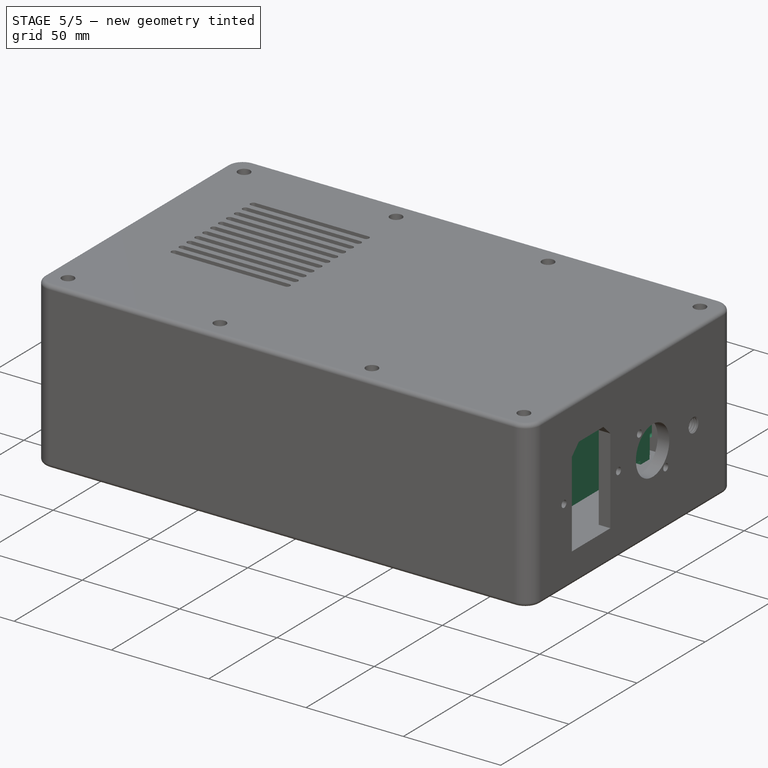
[diagram: stage 5 of 5 — iso view after this stage's code; geometry added in this stage tinted green]
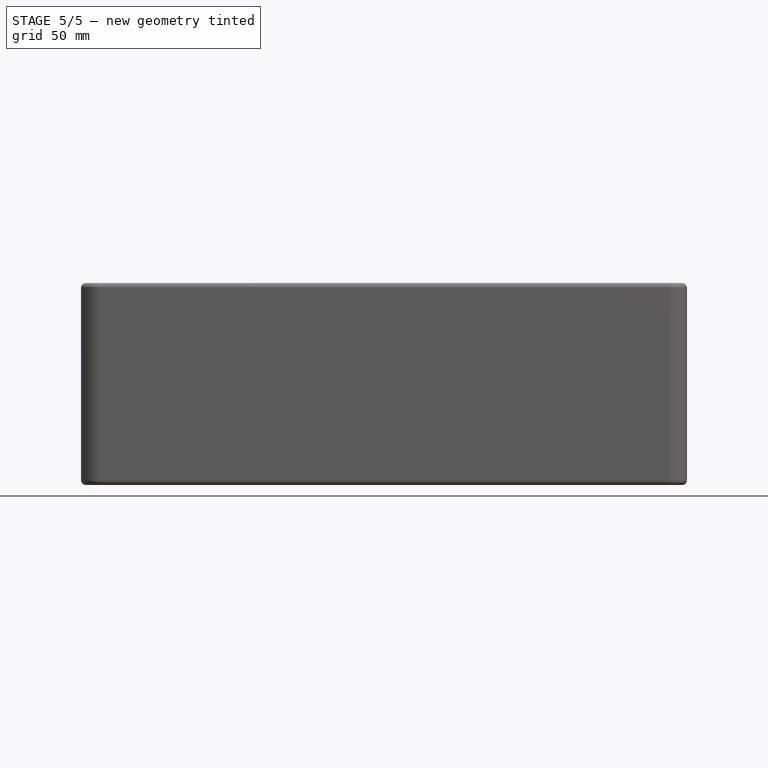
[diagram: stage 5 of 5 — front view after this stage's code; geometry added in this stage tinted green]
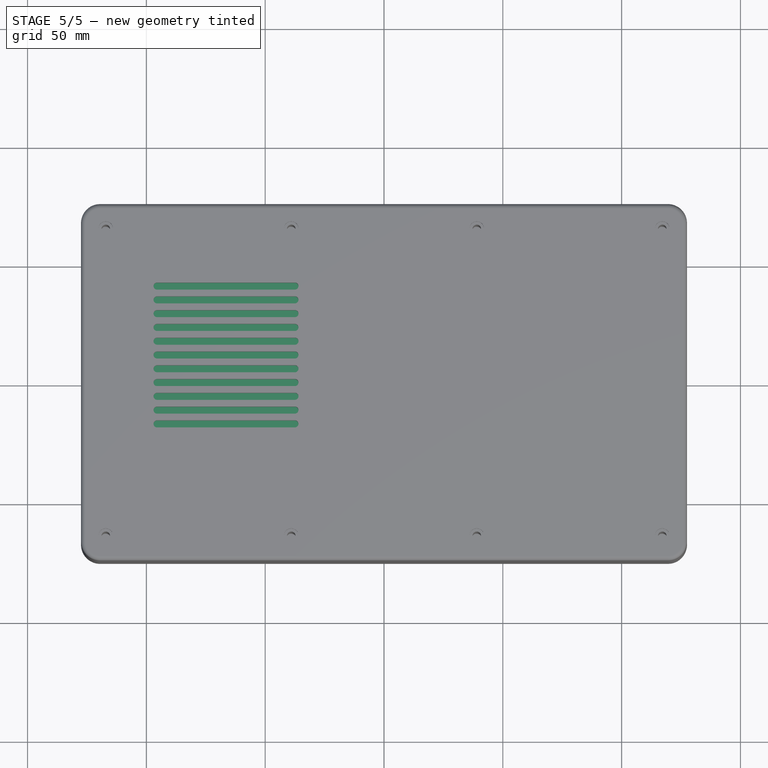
[diagram: stage 5 of 5 — top view after this stage's code; geometry added in this stage tinted green]
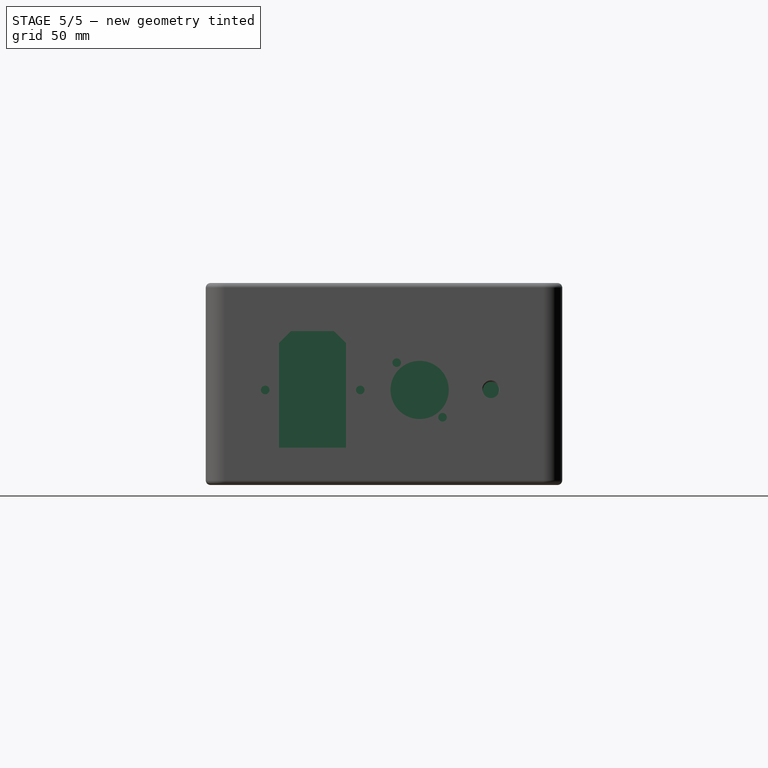
[diagram: stage 5 of 5 — right view after this stage's code; geometry added in this stage tinted green]
FEATURE [Sketcher::SketchObject] Sketch005
  AttachmentOffset = pos=(0,0,13) rot=(0,0,1;0rad)
  FullyConstrained = true
  MapMode = 5
  Placement = pos=(0,0,13) rot=(0,0,1;0rad)
  Support = -> [XY_Plane002]
  sketch-geometry (14):
    g0: LineSegment StartX=-98.25 StartY=-54.5 StartZ=0 EndX=-98.25 EndY=54.5 EndZ=0
    g1: LineSegment StartX=-98.25 StartY=54.5 StartZ=0 EndX=98.25 EndY=54.5 EndZ=0
    g2: LineSegment StartX=98.25 StartY=54.5 StartZ=0 EndX=98.25 EndY=48 EndZ=0
    g3: LineSegment StartX=98.25 StartY=-54.5 StartZ=0 EndX=-98.25 EndY=-54.5 EndZ=0
    g4: GeomPoint X=0 Y=0 Z=0
    g5: Circle CenterX=-93.25 CenterY=-49.5 CenterZ=0 NormalX=0 NormalY=0 NormalZ=1 AngleXU=0 Radius=2.25
    g6: ArcOfCircle CenterX=95.75 CenterY=46 CenterZ=0 NormalX=0 NormalY=0 NormalZ=1 AngleXU=0 Radius=2 StartAngle=1.5708 EndAngle=4.71239
    g7: LineSegment StartX=95.75 StartY=44 StartZ=0 EndX=98.25 EndY=44 EndZ=0
    g8: LineSegment StartX=98.25 StartY=48 StartZ=0 EndX=95.75 EndY=48 EndZ=0
    g9: LineSegment StartX=98.25 StartY=44 StartZ=0 EndX=98.25 EndY=-54.5 EndZ=0
    g10: Circle CenterX=-35.75 CenterY=44.5 CenterZ=0 NormalX=0 NormalY=0 NormalZ=1 AngleXU=0 Radius=2
    g11: Circle CenterX=90.75 CenterY=44.5 CenterZ=0 NormalX=0 NormalY=0 NormalZ=1 AngleXU=0 Radius=2
    g12: Circle CenterX=90.75 CenterY=-40.5 CenterZ=0 NormalX=0 NormalY=0 NormalZ=1 AngleXU=0 Radius=2
    g13: Circle CenterX=-35.75 CenterY=-40.5 CenterZ=0 NormalX=0 NormalY=0 NormalZ=1 AngleXU=0 Radius=2
  constraints (38):
    c: Coincident(g0,g1)
    c: Coincident(g1,g2)
    c: Coincident(g9,g3)
    c: Coincident(g3,g0)
    c: Horizontal(g1)
    c: Horizontal(g3)
    c: Vertical(g0)
    c: Vertical(g2)
    c: Symmetric(g1,g0,g4)
    c: Coincident(g4,g-1)
    c: DistanceX(g1,g1) = 196.5
    c: DistanceY(g0,g0) = 109
    c: Tangent(g6,g7) = -1.5708
    c: Tangent(g8,g6) = -1.5708
    c: Horizontal(g7)
    c: Coincident(g2,g8)
    c: Coincident(g9,g7)
    c: Diameter(g6) = 4
    c: Horizontal(g8)
    c: DistanceX(g6,g7) = 2.5
    c: Vertical(g9)
    c: Equal(g1,g3)
    c: DistanceY(g6,g1) = 6.5
    c: Diameter(g5) = 4.5
    c: DistanceX(g0,g5) = 5
    c: DistanceY(g0,g5) = 5
    c: Vertical(g13,g10)
    c: Horizontal(g10,g11)
    c: Vertical(g11,g12)
    c: Horizontal(g13,g12)
    c: Equal(g10,g12)
    c: Equal(g12,g13)
    c: Equal(g10,g11)
    c: Diameter(g10) = 4
    c: DistanceY(g10,g0) = 10
    c: DistanceY(g13,g10) = 85
    c: DistanceX(g10,g11) = 126.5
    c: DistanceX(g0,g10) = 62.5
FEATURE [PartDesign::Pad] Pad003
  Direction = (0,0,1)
  Length = 2
  Length2 = 10
  Profile = -> Sketch005
  ReferenceAxis = -> Sketch005 [N_Axis]
  Type = 0
FEATURE [Sketcher::SketchObject] Sketch007
  FullyConstrained = true
  MapMode = 5
  Placement = pos=(0,0,15) rot=(0,0,1;0rad)
  Support = -> [Pad003]
  sketch-geometry (5):
    g0: LineSegment StartX=-79.64 StartY=54.5 StartZ=0 EndX=98.36 EndY=54.5 EndZ=0
    g1: LineSegment StartX=98.36 StartY=54.5 StartZ=0 EndX=98.36 EndY=-54.5 EndZ=0
    g2: LineSegment StartX=98.36 StartY=-54.5 StartZ=0 EndX=-79.64 EndY=-54.5 EndZ=0
    g3: LineSegment StartX=-79.64 StartY=-54.5 StartZ=0 EndX=-79.64 EndY=54.5 EndZ=0
    g4: Circle CenterX=55.36 CenterY=-11.5 CenterZ=0 NormalX=0 NormalY=0 NormalZ=1 AngleXU=0 Radius=28.5
  constraints (15):
    c: Coincident(g0,g1)
    c: Coincident(g1,g2)
    c: Coincident(g2,g3)
    c: Coincident(g3,g0)
    c: Horizontal(g0)
    c: Horizontal(g2)
    c: Vertical(g1)
    c: Vertical(g3)
    c: DistanceX(g0,g0) = 178
    c: DistanceY(g1,g1) = 109
    c: DistanceX(g4,g1) = 43
    c: DistanceY(g1,g4) = 43
    c: Diameter(g4) = 57
    c: DistanceX(g0) = -79.64
    c: DistanceY(g-1,g0) = 54.5
FEATURE [PartDesign::Pad] Pad005
  BaseFeature = -> Pad003
  Direction = (0,0,1)
  Length = 54
  Length2 = 10
  Profile = -> Sketch007
  ReferenceAxis = -> Sketch007 [N_Axis]
  Type = 0
FEATURE [Sketcher::SketchObject] Sketch008
  AttachmentOffset = pos=(0,0,-1) rot=(0,0,1;0rad)
  FullyConstrained = false
  MapMode = 5
  Placement = pos=(0,0,14) rot=(0,0,1;0rad)
  Support = -> [Pad005]
  sketch-geometry (4):
    g0: LineSegment StartX=-78.7167 StartY=53.4916 StartZ=0 EndX=97.5558 EndY=53.4916 EndZ=0
    g1: LineSegment StartX=97.5558 StartY=53.4916 StartZ=0 EndX=97.5558 EndY=-53.5619 EndZ=0
    g2: LineSegment StartX=97.5558 StartY=-53.5619 StartZ=0 EndX=-78.7167 EndY=-53.5619 EndZ=0
    g3: LineSegment StartX=-78.7167 StartY=-53.5619 StartZ=0 EndX=-78.7167 EndY=53.4916 EndZ=0
  constraints (8):
    c: Coincident(g0,g1)
    c: Coincident(g1,g2)
    c: Coincident(g2,g3)
    c: Coincident(g3,g0)
    c: Horizontal(g0)
    c: Horizontal(g2)
    c: Vertical(g1)
    c: Vertical(g3)
FEATURE [PartDesign::Pocket] Pocket001
  BaseFeature = -> Pad005
  Direction = (0,0,-1)
  Length = 48
  Length2 = 5
  Profile = -> Sketch008
  ReferenceAxis = -> Sketch008 [N_Axis]
  Reversed = true
  Type = 0
  expr: Length = 48
FEATURE [PartDesign::LinearPattern] LinearPattern
  BaseFeature = -> Pocket006
  Direction = -> X_Axis001
  Length = 50
  Occurrences = 10
  Originals = -> [Pocket006]
  Reversed = true
FEATURE [PartDesign::Fillet] Fillet
  Base = -> LinearPattern [Edge27,Edge29,Edge28,Edge26,Edge24,Edge2,Edge22,Edge25]
  BaseFeature = -> LinearPattern
  Radius = 2
  SupportTransform = false
  UseAllEdges = false
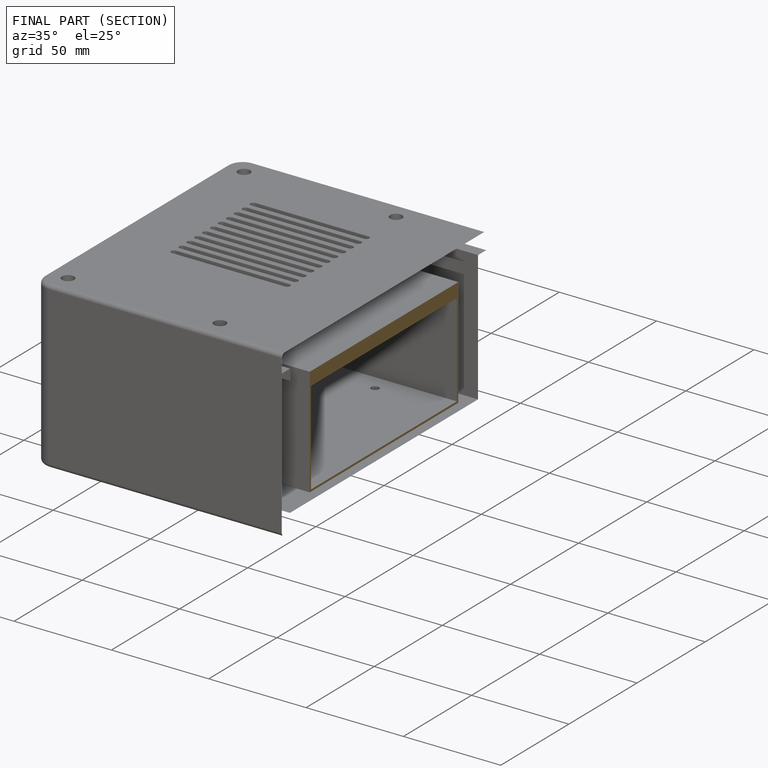
[diagram: finished part — half-section view (interior)]
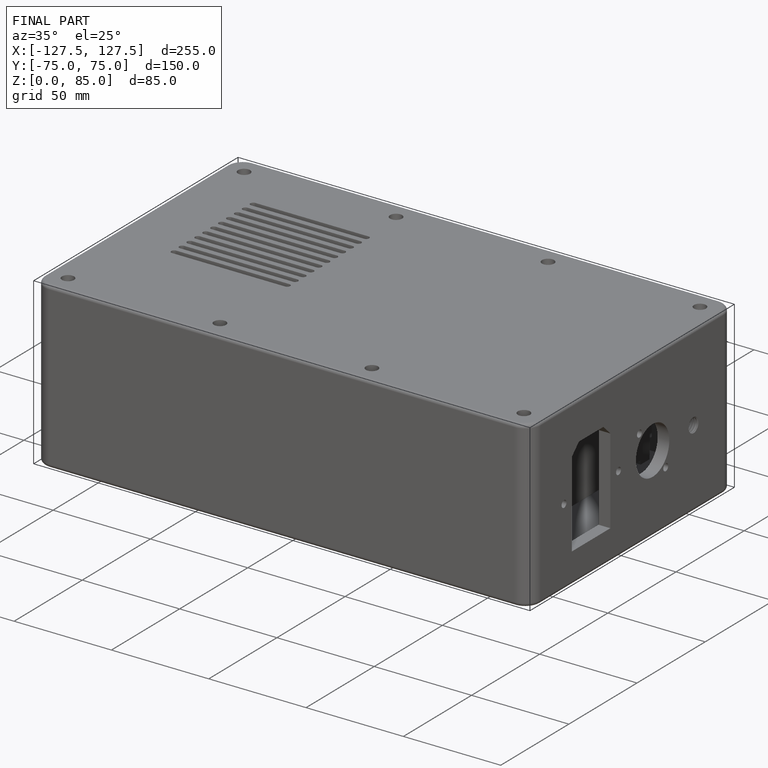
[diagram: finished part — iso view with bounding-box wireframe]
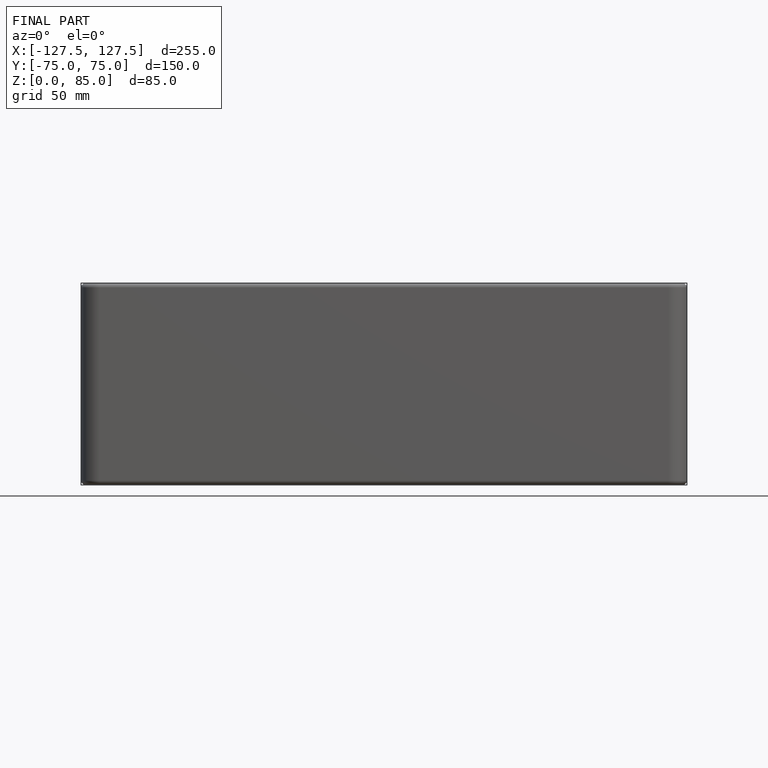
[diagram: finished part — front view with bounding-box wireframe]
